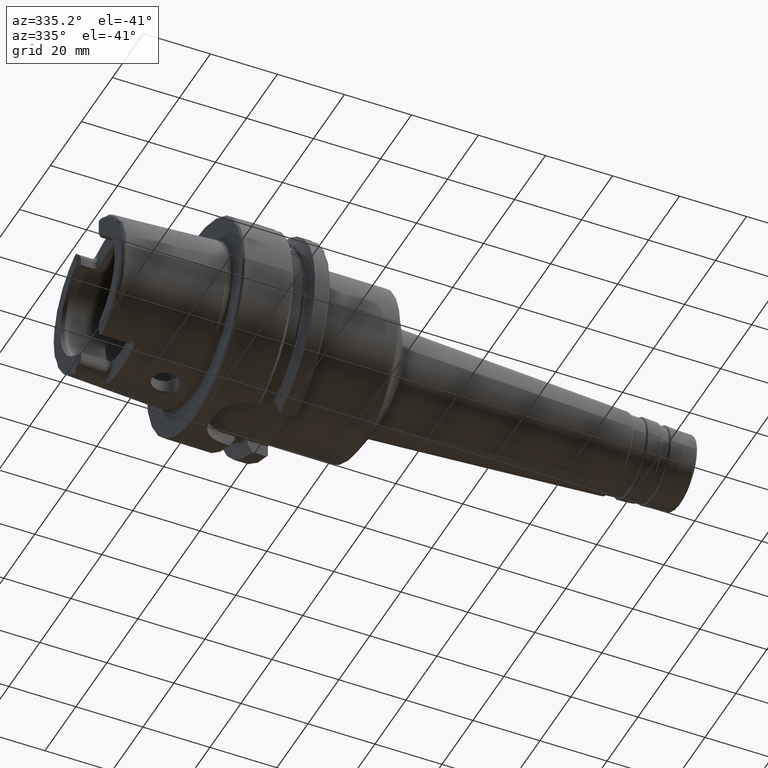
[diagram: clean part render]
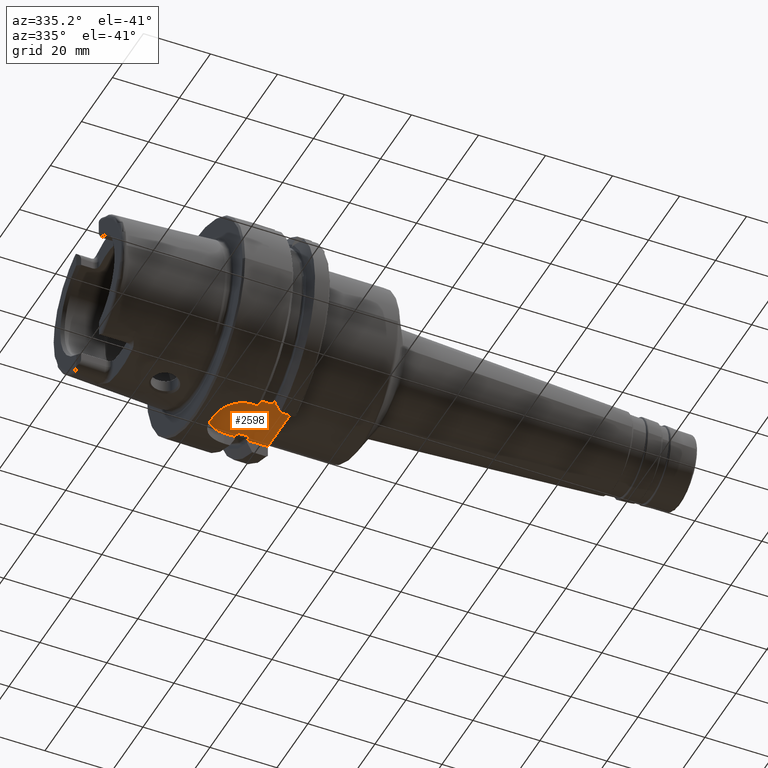
[diagram: same view with one face highlighted and labeled with its STEP entity id]
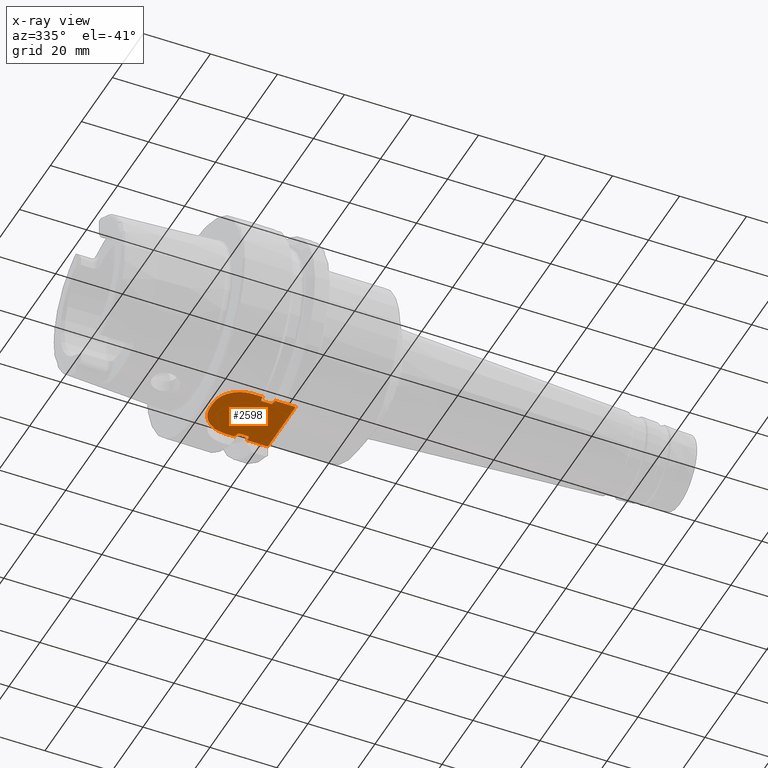
[diagram: x-ray of the same camera — body ghosted, the highlighted face saturated]
A machine part, auxiliary view. The second image highlights one B-rep face of the part: STEP entity #2598.
The next image is the same camera in x-ray: the body ghosted, the highlighted face saturated — about 0% of this face is hidden behind the body in this view.
In plain terms, the highlighted planar face has unit normal (0, 0, 1).
Its self-contained STEP definition (entity closure, byte-faithful):
#70=B_SPLINE_CURVE_WITH_KNOTS('',3,(#5122,#5123,#5124,#5125,#5126,#5127,
#5128,#5129,#5130,#5131),.UNSPECIFIED.,.F.,.F.,(4,2,2,2,4),(0.328785692776271,
0.334026201575553,0.340879824321645,0.368343350403884,0.499212073098123),
 .UNSPECIFIED.);
#71=B_SPLINE_CURVE_WITH_KNOTS('',3,(#5134,#5135,#5136,#5137,#5138,#5139,
#5140,#5141,#5142,#5143),.UNSPECIFIED.,.F.,.F.,(4,2,2,2,4),(0.15835931245442,
0.289228035148658,0.316691561230896,0.323545183976989,0.32878569277627),
 .UNSPECIFIED.);
#72=B_SPLINE_CURVE_WITH_KNOTS('',3,(#5145,#5146,#5147,#5148,#5149,#5150,
#5151,#5152,#5153,#5154),.UNSPECIFIED.,.F.,.F.,(4,2,2,2,4),(0.32878569277627,
0.334026201575551,0.340879824321645,0.368343350403882,0.49921207309812),
 .UNSPECIFIED.);
#73=B_SPLINE_CURVE_WITH_KNOTS('',3,(#5157,#5158,#5159,#5160,#5161,#5162,
#5163,#5164,#5165,#5166),.UNSPECIFIED.,.F.,.F.,(4,2,2,2,4),(0.15835931245442,
0.289228035148658,0.316691561230897,0.323545183976989,0.328785692776271),
 .UNSPECIFIED.);
#132=PLANE('',#2908);
#279=FACE_OUTER_BOUND('',#420,.T.);
#420=EDGE_LOOP('',(#2132,#2133,#2134,#2135,#2136,#2137,#2138,#2139,#2140,
#2141,#2142,#2143,#2144,#2145));
#504=LINE('',#4110,#621);
#557=LINE('',#5034,#674);
#558=LINE('',#5043,#675);
#563=LINE('',#5072,#680);
#567=LINE('',#5111,#684);
#569=LINE('',#5115,#686);
#570=LINE('',#5133,#687);
#571=LINE('',#5156,#688);
#621=VECTOR('',#3302,10.);
#674=VECTOR('',#3551,10.);
#675=VECTOR('',#3554,10.);
#680=VECTOR('',#3567,10.);
#684=VECTOR('',#3577,10.);
#686=VECTOR('',#3581,10.);
#687=VECTOR('',#3584,10.);
#688=VECTOR('',#3585,10.);
#868=CIRCLE('',#2901,8.);
#870=CIRCLE('',#2905,8.);
#1026=VERTEX_POINT('',#4107);
#1027=VERTEX_POINT('',#4109);
#1144=VERTEX_POINT('',#5011);
#1148=VERTEX_POINT('',#5036);
#1150=VERTEX_POINT('',#5042);
#1155=VERTEX_POINT('',#5065);
#1157=VERTEX_POINT('',#5071);
#1159=VERTEX_POINT('',#5086);
#1162=VERTEX_POINT('',#5106);
#1163=VERTEX_POINT('',#5114);
#1164=VERTEX_POINT('',#5121);
#1165=VERTEX_POINT('',#5132);
#1166=VERTEX_POINT('',#5144);
#1167=VERTEX_POINT('',#5155);
#1343=EDGE_CURVE('',#1026,#1027,#504,.T.);
#1500=EDGE_CURVE('',#1027,#1144,#557,.T.);
#1502=EDGE_CURVE('',#1148,#1150,#558,.T.);
#1508=EDGE_CURVE('',#1150,#1155,#868,.T.);
#1511=EDGE_CURVE('',#1155,#1157,#563,.T.);
#1514=EDGE_CURVE('',#1157,#1159,#870,.T.);
#1520=EDGE_CURVE('',#1162,#1026,#567,.T.);
#1522=EDGE_CURVE('',#1159,#1163,#569,.T.);
#1524=EDGE_CURVE('',#1164,#1148,#70,.T.);
#1525=EDGE_CURVE('',#1165,#1164,#570,.T.);
#1526=EDGE_CURVE('',#1144,#1165,#71,.T.);
#1527=EDGE_CURVE('',#1166,#1162,#72,.T.);
#1528=EDGE_CURVE('',#1167,#1166,#571,.T.);
#1529=EDGE_CURVE('',#1163,#1167,#73,.T.);
#2132=ORIENTED_EDGE('',*,*,#1524,.F.);
#2133=ORIENTED_EDGE('',*,*,#1525,.F.);
#2134=ORIENTED_EDGE('',*,*,#1526,.F.);
#2135=ORIENTED_EDGE('',*,*,#1500,.F.);
#2136=ORIENTED_EDGE('',*,*,#1343,.F.);
#2137=ORIENTED_EDGE('',*,*,#1520,.F.);
#2138=ORIENTED_EDGE('',*,*,#1527,.F.);
#2139=ORIENTED_EDGE('',*,*,#1528,.F.);
#2140=ORIENTED_EDGE('',*,*,#1529,.F.);
#2141=ORIENTED_EDGE('',*,*,#1522,.F.);
#2142=ORIENTED_EDGE('',*,*,#1514,.F.);
#2143=ORIENTED_EDGE('',*,*,#1511,.F.);
#2144=ORIENTED_EDGE('',*,*,#1508,.F.);
#2145=ORIENTED_EDGE('',*,*,#1502,.F.);
#2598=ADVANCED_FACE('',(#279),#132,.F.);
#2901=AXIS2_PLACEMENT_3D('',#5066,#3560,#3561);
#2905=AXIS2_PLACEMENT_3D('',#5087,#3571,#3572);
#2908=AXIS2_PLACEMENT_3D('',#5120,#3582,#3583);
#3302=DIRECTION('',(0.,1.,0.));
#3551=DIRECTION('',(-1.,2.56205313375036E-16,0.));
#3554=DIRECTION('',(-1.,2.56205313375036E-16,0.));
#3560=DIRECTION('center_axis',(0.,0.,1.));
#3561=DIRECTION('ref_axis',(0.,1.,0.));
#3567=DIRECTION('',(0.,-1.,0.));
#3571=DIRECTION('center_axis',(0.,0.,1.));
#3572=DIRECTION('ref_axis',(-1.,-2.42861286636753E-16,0.));
#3577=DIRECTION('',(1.,-2.56205313375036E-16,0.));
#3581=DIRECTION('',(1.,-2.56205313375036E-16,0.));
#3582=DIRECTION('center_axis',(0.,0.,1.));
#3583=DIRECTION('ref_axis',(1.,0.,0.));
#3584=DIRECTION('',(-1.,0.,0.));
#3585=DIRECTION('',(1.,0.,0.));
#4107=CARTESIAN_POINT('',(26.,-9.,-26.5));
#4109=CARTESIAN_POINT('',(26.,9.,-26.5));
#4110=CARTESIAN_POINT('',(26.,1.94289029309402E-15,-26.5));
#5011=CARTESIAN_POINT('',(19.8748205133158,9.,-26.5));
#5034=CARTESIAN_POINT('',(26.,9.,-26.5));
#5036=CARTESIAN_POINT('',(16.1251794866842,9.,-26.5));
#5042=CARTESIAN_POINT('',(13.,9.00000000000001,-26.5));
#5043=CARTESIAN_POINT('',(26.,9.,-26.5));
#5065=CARTESIAN_POINT('',(5.,1.,-26.5));
#5066=CARTESIAN_POINT('Origin',(13.,1.,-26.5));
#5071=CARTESIAN_POINT('',(5.,-0.999999999999999,-26.5));
#5072=CARTESIAN_POINT('',(5.,1.,-26.5));
#5086=CARTESIAN_POINT('',(13.,-9.,-26.5));
#5087=CARTESIAN_POINT('Origin',(13.,-0.999999999999997,-26.5));
#5106=CARTESIAN_POINT('',(19.8748205133158,-9.,-26.5));
#5111=CARTESIAN_POINT('',(13.,-9.,-26.5));
#5114=CARTESIAN_POINT('',(16.1251794866842,-9.,-26.5));
#5115=CARTESIAN_POINT('',(13.,-9.,-26.5));
#5120=CARTESIAN_POINT('Origin',(15.5,3.88578058618805E-15,-26.5));
#5121=CARTESIAN_POINT('',(16.625,7.34846922834952,-26.5));
#5122=CARTESIAN_POINT('Ctrl Pts',(16.625,7.34846922834952,-26.5));
#5123=CARTESIAN_POINT('Ctrl Pts',(16.6075316373357,7.34846922834952,-26.5));
#5124=CARTESIAN_POINT('Ctrl Pts',(16.587038394856,7.35287762173868,-26.5));
#5125=CARTESIAN_POINT('Ctrl Pts',(16.5496994821687,7.36807649661538,-26.5));
#5126=CARTESIAN_POINT('Ctrl Pts',(16.5270295504762,7.38349170057081,-26.5));
#5127=CARTESIAN_POINT('Ctrl Pts',(16.4411490019356,7.4590543697872,-26.5));
#5128=CARTESIAN_POINT('Ctrl Pts',(16.3906456489289,7.5566112023157,-26.5));
#5129=CARTESIAN_POINT('Ctrl Pts',(16.1819334034884,8.04136347440828,-26.5));
#5130=CARTESIAN_POINT('Ctrl Pts',(16.12898241235,8.55877260788573,-26.5));
#5131=CARTESIAN_POINT('Ctrl Pts',(16.1251794866842,9.,-26.5));
#5132=CARTESIAN_POINT('',(19.375,7.34846922834952,-26.5));
#5133=CARTESIAN_POINT('',(18.,7.34846922834952,-26.5));
#5134=CARTESIAN_POINT('Ctrl Pts',(19.8748205133158,9.,-26.5));
#5135=CARTESIAN_POINT('Ctrl Pts',(19.87101758765,8.55877260788574,-26.5));
#5136=CARTESIAN_POINT('Ctrl Pts',(19.8180665965116,8.04136347440828,-26.5));
#5137=CARTESIAN_POINT('Ctrl Pts',(19.6093543510711,7.5566112023157,-26.5));
#5138=CARTESIAN_POINT('Ctrl Pts',(19.5588509980644,7.45905436978721,-26.5));
#5139=CARTESIAN_POINT('Ctrl Pts',(19.4729704495238,7.38349170057082,-26.5));
#5140=CARTESIAN_POINT('Ctrl Pts',(19.4503005178313,7.36807649661538,-26.5));
#5141=CARTESIAN_POINT('Ctrl Pts',(19.412961605144,7.35287762173868,-26.5));
#5142=CARTESIAN_POINT('Ctrl Pts',(19.3924683626643,7.34846922834952,-26.5));
#5143=CARTESIAN_POINT('Ctrl Pts',(19.375,7.34846922834952,-26.5));
#5144=CARTESIAN_POINT('',(19.375,-7.34846922834952,-26.5));
#5145=CARTESIAN_POINT('Ctrl Pts',(19.375,-7.34846922834952,-26.5));
#5146=CARTESIAN_POINT('Ctrl Pts',(19.3924683626643,-7.34846922834952,-26.5));
#5147=CARTESIAN_POINT('Ctrl Pts',(19.412961605144,-7.35287762173868,-26.5));
#5148=CARTESIAN_POINT('Ctrl Pts',(19.4503005178313,-7.36807649661538,-26.5));
#5149=CARTESIAN_POINT('Ctrl Pts',(19.4729704495238,-7.38349170057082,-26.5));
#5150=CARTESIAN_POINT('Ctrl Pts',(19.5588509980644,-7.45905436978721,-26.5));
#5151=CARTESIAN_POINT('Ctrl Pts',(19.6093543510711,-7.5566112023157,-26.5));
#5152=CARTESIAN_POINT('Ctrl Pts',(19.8180665965116,-8.04136347440828,-26.5));
#5153=CARTESIAN_POINT('Ctrl Pts',(19.87101758765,-8.55877260788573,-26.5));
#5154=CARTESIAN_POINT('Ctrl Pts',(19.8748205133158,-9.,-26.5));
#5155=CARTESIAN_POINT('',(16.625,-7.34846922834952,-26.5));
#5156=CARTESIAN_POINT('',(18.,-7.34846922834952,-26.5));
#5157=CARTESIAN_POINT('Ctrl Pts',(16.1251794866842,-9.,-26.5));
#5158=CARTESIAN_POINT('Ctrl Pts',(16.12898241235,-8.55877260788573,-26.5));
#5159=CARTESIAN_POINT('Ctrl Pts',(16.1819334034884,-8.04136347440828,-26.5));
#5160=CARTESIAN_POINT('Ctrl Pts',(16.3906456489289,-7.5566112023157,-26.5));
#5161=CARTESIAN_POINT('Ctrl Pts',(16.4411490019356,-7.4590543697872,-26.5));
#5162=CARTESIAN_POINT('Ctrl Pts',(16.5270295504762,-7.38349170057081,-26.5));
#5163=CARTESIAN_POINT('Ctrl Pts',(16.5496994821687,-7.36807649661538,-26.5));
#5164=CARTESIAN_POINT('Ctrl Pts',(16.587038394856,-7.35287762173868,-26.5));
#5165=CARTESIAN_POINT('Ctrl Pts',(16.6075316373357,-7.34846922834952,-26.5));
#5166=CARTESIAN_POINT('Ctrl Pts',(16.625,-7.34846922834952,-26.5));